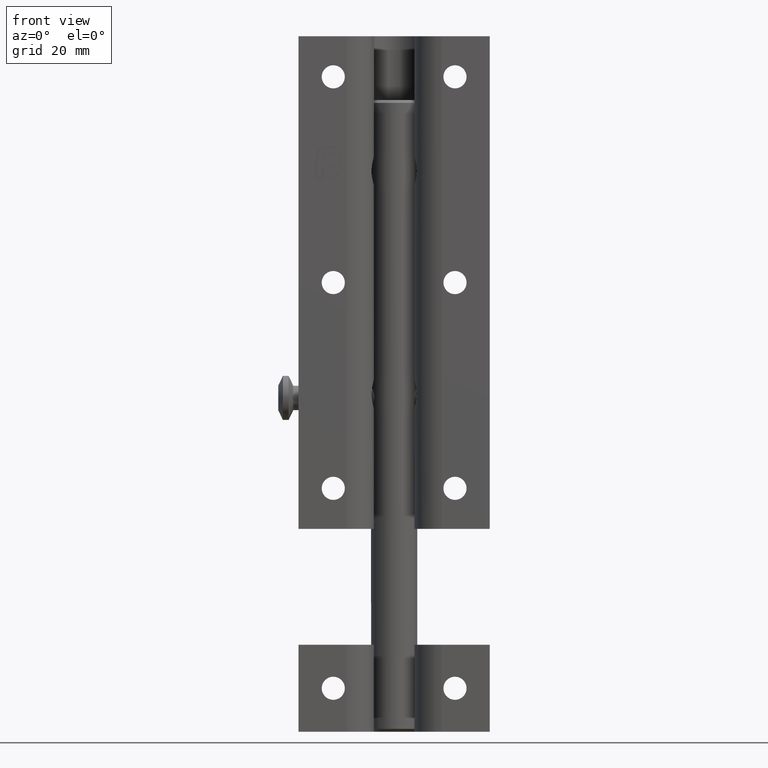
[diagram: clean part render]
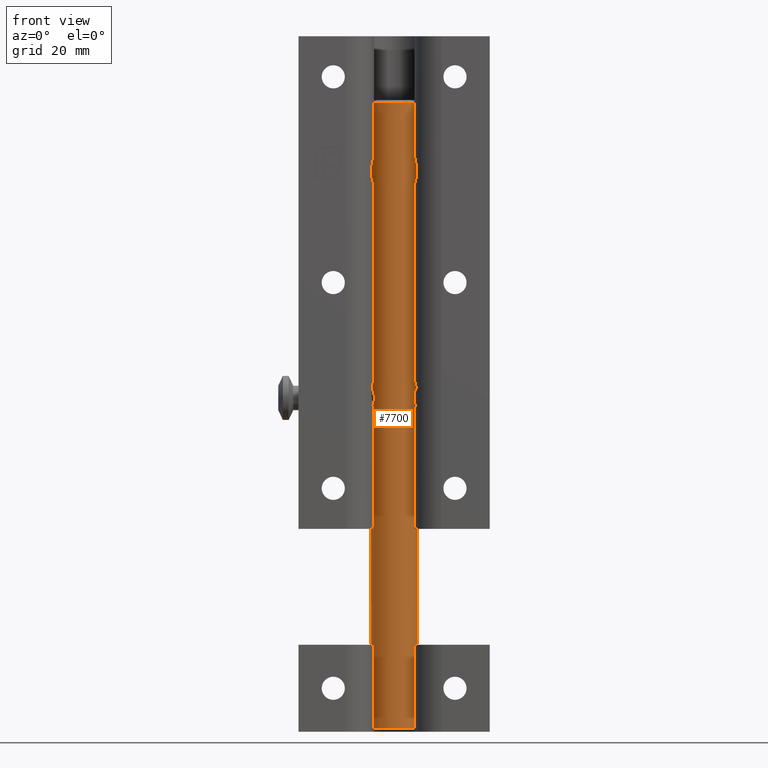
[diagram: same view with one face highlighted and labeled with its STEP entity id]
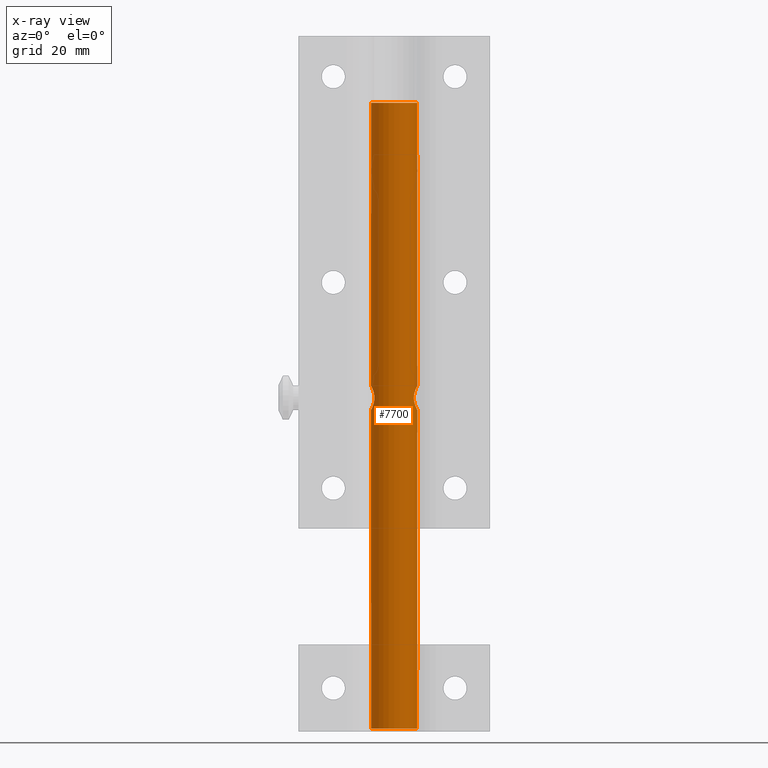
[diagram: x-ray of the same camera — body ghosted, the highlighted face saturated]
A machine part, front view. The second image highlights one B-rep face of the part: STEP entity #7700.
The next image is the same camera in x-ray: the body ghosted, the highlighted face saturated — about 0% of this face is hidden behind the body in this view.
In plain terms, the highlighted cylindrical surface (bore or boss wall) has radius 4 mm, axis along (-0, 0, -1).
Its self-contained STEP definition (entity closure, byte-faithful):
#8 = CARTESIAN_POINT ( 'NONE',  ( 2.086422533839827675, -3.412894280657350787, 2.824183064481748939 ) ) ;
#58 = CARTESIAN_POINT ( 'NONE',  ( 1.885266860487810670, -3.528375267482096955, 2.164751611925175734 ) ) ;
#76 = CARTESIAN_POINT ( 'NONE',  ( 1.664548525148768832, 3.638186043984863449, 1.812477587119948330 ) ) ;
#137 = EDGE_LOOP ( 'NONE', ( #6076 ) ) ;
#149 = CARTESIAN_POINT ( 'NONE',  ( 1.392603934749197636, 3.751158582826889631, 4.677619798817729269 ) ) ;
#196 = CARTESIAN_POINT ( 'NONE',  ( 1.991579794457839725, 3.469480547576524021, 3.780201263688242719 ) ) ;
#241 = CARTESIAN_POINT ( 'NONE',  ( 0.5577558245692442185, 3.963323639515983210, 5.129411290512132737 ) ) ;
#293 = CARTESIAN_POINT ( 'NONE',  ( -1.392603934749196526, -3.751158582826888743, 4.677619798817727492 ) ) ;
#317 = AXIS2_PLACEMENT_3D ( 'NONE', #10081, #6422, #8891 ) ;
#371 = ORIENTED_EDGE ( 'NONE', *, *, #5237, .T. ) ;
#544 = CARTESIAN_POINT ( 'NONE',  ( 1.288964462862775218, 3.788460121688096205, 4.763436787991081722 ) ) ;
#870 = CARTESIAN_POINT ( 'NONE',  ( -0.5590272613966200677, 3.963139078976296137, 1.070948483623603842 ) ) ;
#1002 = CARTESIAN_POINT ( 'NONE',  ( 1.295879428198890126, -3.789787439729146001, 4.774163802664023848 ) ) ;
#1105 = ORIENTED_EDGE ( 'NONE', *, *, #5608, .T. ) ;
#1147 = CARTESIAN_POINT ( 'NONE',  ( 2.085376398335416770, -3.413538994109583058, 3.383605252991710000 ) ) ;
#1200 = CARTESIAN_POINT ( 'NONE',  ( 0.1466686624820182638, -3.999749793389443031, 1.000476585909386262 ) ) ;
#1219 = CARTESIAN_POINT ( 'NONE',  ( -0.1466686624820190965, 3.999749793389442143, 1.000476585909387373 ) ) ;
#1293 = CARTESIAN_POINT ( 'NONE',  ( 0.9417022067265251595, 3.889707660575720372, 4.982010756184765299 ) ) ;
#1303 = FACE_BOUND ( 'NONE', #5165, .T. ) ;
#1390 = CARTESIAN_POINT ( 'NONE',  ( 2.086622040727063698, 3.412773796302301044, 3.374710675273078664 ) ) ;
#1837 = DIRECTION ( 'NONE',  ( 0.000000000000000000, 0.000000000000000000, -1.000000000000000000 ) ) ;
#2058 = CARTESIAN_POINT ( 'NONE',  ( -0.6926460474983499038, 3.941668543636447364, 1.112817931873347099 ) ) ;
#2108 = CARTESIAN_POINT ( 'NONE',  ( -1.066801894119435934, 3.863793379455140009, 4.929607105935878586 ) ) ;
#2146 = CARTESIAN_POINT ( 'NONE',  ( -0.1326880749632052547, -4.000237990549524447, 0.9995466828249840452 ) ) ;
#2160 = CARTESIAN_POINT ( 'NONE',  ( -2.100381390312468177, 3.404173647846869599, 2.965929151354490756 ) ) ;
#2170 = ORIENTED_EDGE ( 'NONE', *, *, #4263, .T. ) ;
#2196 = CARTESIAN_POINT ( 'NONE',  ( -1.388335502371843333, -3.752740201187608982, 1.518651261073822756 ) ) ;
#2251 = CARTESIAN_POINT ( 'NONE',  ( -2.040582332912664665, -3.442474442597478035, 2.534266541798191330 ) ) ;
#2296 = CARTESIAN_POINT ( 'NONE',  ( 1.299511200931253052, -3.788527161189800374, 1.428637712261526138 ) ) ;
#2346 = CARTESIAN_POINT ( 'NONE',  ( 1.583696112197721551, -3.674550785785180018, 1.714376696657827104 ) ) ;
#2393 = CARTESIAN_POINT ( 'NONE',  ( -1.885375808827449040, -3.528320196239689288, 4.035105286213295450 ) ) ;
#2416 = CARTESIAN_POINT ( 'NONE',  ( 1.816489242583001706, 3.564756136792724295, 2.037548783320550339 ) ) ;
#2694 = CARTESIAN_POINT ( 'NONE',  ( 4.000000000000000000, 0.000000000000000000, 54.00000000000003553 ) ) ;
#2899 = CARTESIAN_POINT ( 'NONE',  ( -2.981555974335137194E-16, 4.000000000000000000, 5.199999999999998401 ) ) ;
#3242 = CARTESIAN_POINT ( 'NONE',  ( 0.6804242810594827162, 3.943875094252119240, 1.108440202451197676 ) ) ;
#3326 = CARTESIAN_POINT ( 'NONE',  ( 3.252606517456513302E-16, -3.999999999999999112, 5.199999999999999289 ) ) ;
#3375 = CARTESIAN_POINT ( 'NONE',  ( -1.578968009356111812, -3.676600945191859093, 1.708957467695725763 ) ) ;
#3427 = CARTESIAN_POINT ( 'NONE',  ( 1.882526578626267932, -3.529835718310129877, 4.040549544016341699 ) ) ;
#3476 = CARTESIAN_POINT ( 'NONE',  ( -0.9367681144281851946, -3.890963050596619066, 1.215390457081732878 ) ) ;
#3527 = CARTESIAN_POINT ( 'NONE',  ( 0.5520806641219732080, -3.964076342588858548, 5.130875332880679984 ) ) ;
#3598 = CARTESIAN_POINT ( 'NONE',  ( -1.885266860487810003, 3.528375267482098732, 2.164751611925175734 ) ) ;
#3677 = CARTESIAN_POINT ( 'NONE',  ( -1.583167133977334773, -3.674794995436991840, 4.486294259742361845 ) ) ;
#4002 = B_SPLINE_CURVE_WITH_KNOTS ( 'NONE', 3,
 ( #3326, #14000, #10412, #3527, #10510, #8115, #1002, #5827, #11746, #12916, #3427, #5686, #14047, #1147, #9378, #5876, #8, #7053, #9327, #58, #9226, #6865, #2346, #2296, #8072, #15189, #11555, #8223, #1200, #2146, #10557, #9279, #10358, #3476, #11651, #15104, #2196, #3375, #5735, #11601, #12767, #2251, #4621, #6958, #11699, #11932, #6064, #2393, #10652, #8277, #3677, #293, #11889, #13063, #14151, #14304, #5921, #7104, #7287, #4908 ),
 .UNSPECIFIED., .T., .F.,
 ( 4, 2, 2, 2, 2, 2, 2, 2, 2, 2, 2, 2, 2, 2, 2, 2, 2, 2, 2, 2, 2, 2, 2, 2, 2, 2, 2, 2, 2, 4 ),
 ( 0.000000000000000000, 0.0004179015732330093277, 0.0008358031464660186554, 0.001671606292932037961, 0.002089507866165047668, 0.002507409439398057376, 0.002925311012631066649, 0.003343212585864075923, 0.003761114159097085196, 0.004179015732330094469, 0.004596917305563104177, 0.005014818878796113016, 0.005850622025262132431, 0.006268523598495143005, 0.006686425171728151845, 0.007104326744961161552, 0.007522228318194170392, 0.007940129891427180966, 0.008358031464660188939, 0.008775933037893198646, 0.009193834611126208353, 0.01002963775759222777, 0.01044753933082523921, 0.01086544090405824892, 0.01128334247729126036, 0.01170124405052427007, 0.01211914562375728151, 0.01253704719699029295, 0.01295494877022330266, 0.01337285034345631583 ),
 .UNSPECIFIED. ) ;
#4263 = EDGE_CURVE ( 'NONE', #7270, #7270, #8608, .T. ) ;
#4418 = EDGE_LOOP ( 'NONE', ( #371 ) ) ;
#4433 = CARTESIAN_POINT ( 'NONE',  ( 1.388335502371842667, 3.752740201187605429, 1.518651261073820313 ) ) ;
#4483 = CARTESIAN_POINT ( 'NONE',  ( 0.9367681144281855277, 3.890963050596619510, 1.215390457081732434 ) ) ;
#4621 = CARTESIAN_POINT ( 'NONE',  ( -2.099143096252362728, -3.404937481406705935, 2.815028932997326372 ) ) ;
#4648 = FACE_BOUND ( 'NONE', #4418, .T. ) ;
#4737 = CARTESIAN_POINT ( 'NONE',  ( 0.1326880749632048662, 4.000237990549524447, 0.9995466828249838231 ) ) ;
#4788 = CARTESIAN_POINT ( 'NONE',  ( -1.991155183947914686, 3.469721054619560707, 2.418661819587757389 ) ) ;
#4791 = AXIS2_PLACEMENT_3D ( 'NONE', #12637, #6881, #10522 ) ;
#4862 = CARTESIAN_POINT ( 'NONE',  ( 1.885375808827450594, 3.528320196239690176, 4.035105286213293674 ) ) ;
#4908 = CARTESIAN_POINT ( 'NONE',  ( 3.252606517456513302E-16, -3.999999999999999112, 5.199999999999999289 ) ) ;
#4922 = B_SPLINE_CURVE_WITH_KNOTS ( 'NONE', 3,
 ( #12989, #6826, #15066, #12636, #14173, #2108, #10623, #7935, #7988, #7126, #12937, #9083, #5894, #10370, #9136, #2160, #7885, #6718, #4788, #3598, #14121, #5597, #15016, #12685, #14969, #2058, #870, #11768, #1219, #4737, #9448, #10276, #3242, #4483, #7074, #11814, #4433, #6774, #76, #2416, #13816, #10794, #4956, #11887, #1390, #7152, #196, #4862, #14351, #7195, #8325, #149, #544, #5256, #1293, #13061, #241, #6062, #14612, #2899 ),
 .UNSPECIFIED., .T., .F.,
 ( 4, 2, 2, 2, 2, 2, 2, 2, 2, 2, 2, 2, 2, 2, 2, 2, 2, 2, 2, 2, 2, 2, 2, 2, 2, 2, 2, 2, 2, 4 ),
 ( 0.000000000000000000, 0.0004179015732330111708, 0.0008358031464660223417, 0.001671606292932044900, 0.002089507866165056776, 0.002507409439398068651, 0.002925311012631078792, 0.003343212585864089367, 0.003761114159097099941, 0.004179015732330110082, 0.004596917305563120656, 0.005014818878796129496, 0.005850622025262149778, 0.006268523598495160352, 0.006686425171728170927, 0.007104326744961180634, 0.007522228318194190341, 0.007940129891427200048, 0.008358031464660211490, 0.008775933037893222932, 0.009193834611126234374, 0.01002963775759225205, 0.01044753933082526176, 0.01086544090405827147, 0.01128334247729127771, 0.01170124405052428568, 0.01211914562375729192, 0.01253704719699029815, 0.01295494877022330613, 0.01337285034345631236 ),
 .UNSPECIFIED. ) ;
#4956 = CARTESIAN_POINT ( 'NONE',  ( 2.099143096252365837, 3.404937481406709043, 2.815028932997329036 ) ) ;
#5165 = EDGE_LOOP ( 'NONE', ( #1105 ) ) ;
#5237 = EDGE_CURVE ( 'NONE', #14281, #14281, #4002, .T. ) ;
#5256 = CARTESIAN_POINT ( 'NONE',  ( 1.063925664437056717, 3.857709380020257761, 4.915630335370438253 ) ) ;
#5501 = DIRECTION ( 'NONE',  ( 1.000000000000000000, 0.000000000000000000, 0.000000000000000000 ) ) ;
#5597 = CARTESIAN_POINT ( 'NONE',  ( -1.670187001217623202, 3.635587614175028737, 1.819816817780745000 ) ) ;
#5608 = EDGE_CURVE ( 'NONE', #12429, #12429, #4922, .T. ) ;
#5686 = CARTESIAN_POINT ( 'NONE',  ( 1.988221445275665911, -3.471400582191320972, 3.789576136862064626 ) ) ;
#5735 = CARTESIAN_POINT ( 'NONE',  ( -1.664548525148766611, -3.638186043984863449, 1.812477587119946554 ) ) ;
#5827 = CARTESIAN_POINT ( 'NONE',  ( 1.580590756409762987, -3.675891856875211694, 4.489159761653390923 ) ) ;
#5876 = CARTESIAN_POINT ( 'NONE',  ( 2.100381390312467733, -3.404173647846869599, 2.965929151354491644 ) ) ;
#5894 = CARTESIAN_POINT ( 'NONE',  ( -2.029982145838671759, 3.446768874557340823, 3.655336969627540178 ) ) ;
#5921 = CARTESIAN_POINT ( 'NONE',  ( -0.5577558245692423311, -3.963323639515984098, 5.129411290512136290 ) ) ;
#6062 = CARTESIAN_POINT ( 'NONE',  ( 0.2834167235764782911, 3.992330245882008910, 5.185491957955298048 ) ) ;
#6064 = CARTESIAN_POINT ( 'NONE',  ( -1.991579794457838393, -3.469480547576526241, 3.780201263688243163 ) ) ;
#6076 = ORIENTED_EDGE ( 'NONE', *, *, #13811, .T. ) ;
#6113 = CARTESIAN_POINT ( 'NONE',  ( 4.000000000000000000, 0.000000000000000000, -53.99999999999998579 ) ) ;
#6422 = DIRECTION ( 'NONE',  ( -0.000000000000000000, -0.000000000000000000, 1.000000000000000000 ) ) ;
#6425 = AXIS2_PLACEMENT_3D ( 'NONE', #7671, #1837, #5501 ) ;
#6718 = CARTESIAN_POINT ( 'NONE',  ( -2.032029549848756389, 3.445556888109630567, 2.552195399640762474 ) ) ;
#6731 = VERTEX_POINT ( 'NONE', #6113 ) ;
#6774 = CARTESIAN_POINT ( 'NONE',  ( 1.578968009356112034, 3.676600945191857317, 1.708957467695724430 ) ) ;
#6826 = CARTESIAN_POINT ( 'NONE',  ( -0.1414735490691129693, 4.000000000000000888, 5.199999999999999289 ) ) ;
#6865 = CARTESIAN_POINT ( 'NONE',  ( 1.670187001217623202, -3.635587614175028293, 1.819816817780744556 ) ) ;
#6881 = DIRECTION ( 'NONE',  ( -0.000000000000000000, -0.000000000000000000, -1.000000000000000000 ) ) ;
#6958 = CARTESIAN_POINT ( 'NONE',  ( -2.100413886300440236, -3.404153603165450903, 3.232906238113312458 ) ) ;
#7053 = CARTESIAN_POINT ( 'NONE',  ( 2.032029549848758165, -3.445556888109630123, 2.552195399640761586 ) ) ;
#7074 = CARTESIAN_POINT ( 'NONE',  ( 1.056817010850580330, 3.859668056439868433, 1.280229466628754142 ) ) ;
#7104 = CARTESIAN_POINT ( 'NONE',  ( -0.2834167235764756820, -3.992330245882008910, 5.185491957955296272 ) ) ;
#7126 = CARTESIAN_POINT ( 'NONE',  ( -1.818328162325626218, 3.563809779593960947, 4.159267987503953989 ) ) ;
#7152 = CARTESIAN_POINT ( 'NONE',  ( 2.031955645315903336, 3.445601947562202394, 3.648282547073860904 ) ) ;
#7195 = CARTESIAN_POINT ( 'NONE',  ( 1.669962544205240373, 3.635686233405484913, 4.380436108910181758 ) ) ;
#7270 = VERTEX_POINT ( 'NONE', #2694 ) ;
#7287 = CARTESIAN_POINT ( 'NONE',  ( -0.1414735490691136077, -4.000000000000000000, 5.199999999999999289 ) ) ;
#7671 = CARTESIAN_POINT ( 'NONE',  ( 0.000000000000000000, 0.000000000000000000, 54.00000000000003553 ) ) ;
#7700 = ADVANCED_FACE ( 'NONE', ( #4648, #1303, #10149, #13454 ), #10684, .T. ) ;
#7885 = CARTESIAN_POINT ( 'NONE',  ( -2.086422533839828120, 3.412894280657352564, 2.824183064481749827 ) ) ;
#7935 = CARTESIAN_POINT ( 'NONE',  ( -1.580590756409761877, 3.675891856875211250, 4.489159761653391811 ) ) ;
#7988 = CARTESIAN_POINT ( 'NONE',  ( -1.667095373977112605, 3.637011199474115664, 4.384195853178662894 ) ) ;
#8072 = CARTESIAN_POINT ( 'NONE',  ( 1.069958773093766302, -3.862800285273922274, 1.272490027420788428 ) ) ;
#8115 = CARTESIAN_POINT ( 'NONE',  ( 1.066801894119436600, -3.863793379455139121, 4.929607105935876810 ) ) ;
#8223 = CARTESIAN_POINT ( 'NONE',  ( 0.2850087472127613708, -3.992211523993426603, 1.014734657386218375 ) ) ;
#8277 = CARTESIAN_POINT ( 'NONE',  ( -1.669962544205238819, -3.635686233405485357, 4.380436108910180870 ) ) ;
#8325 = CARTESIAN_POINT ( 'NONE',  ( 1.583167133977336993, 3.674794995436991840, 4.486294259742363622 ) ) ;
#8387 = CARTESIAN_POINT ( 'NONE',  ( 3.796405077356803299E-16, -4.000000000000000000, 5.200000000000000178 ) ) ;
#8608 = CIRCLE ( 'NONE', #6425, 4.000000000000000000 ) ;
#8891 = DIRECTION ( 'NONE',  ( 1.000000000000000000, 0.000000000000000000, 0.000000000000000000 ) ) ;
#9083 = CARTESIAN_POINT ( 'NONE',  ( -1.988221445275664578, 3.471400582191320527, 3.789576136862063738 ) ) ;
#9136 = CARTESIAN_POINT ( 'NONE',  ( -2.099602333496739526, 3.404654204268188877, 3.245763570217337968 ) ) ;
#9226 = CARTESIAN_POINT ( 'NONE',  ( 1.820980307019474997, -3.562450370296608160, 2.045284720637557285 ) ) ;
#9279 = CARTESIAN_POINT ( 'NONE',  ( -0.5477030091619404795, -3.964698642600736456, 1.067912681413746512 ) ) ;
#9327 = CARTESIAN_POINT ( 'NONE',  ( 1.991155183947916019, -3.469721054619560707, 2.418661819587756501 ) ) ;
#9378 = CARTESIAN_POINT ( 'NONE',  ( 2.099602333496740414, -3.404654204268185325, 3.245763570217336191 ) ) ;
#9448 = CARTESIAN_POINT ( 'NONE',  ( 0.2748292176406761933, 3.992904057702384879, 1.013417541112949793 ) ) ;
#9768 = CARTESIAN_POINT ( 'NONE',  ( 0.000000000000000000, 4.000000000000000000, 5.200000000000000178 ) ) ;
#10081 = CARTESIAN_POINT ( 'NONE',  ( 0.000000000000000000, 0.000000000000000000, -53.99999999999998579 ) ) ;
#10149 = FACE_OUTER_BOUND ( 'NONE', #137, .T. ) ;
#10276 = CARTESIAN_POINT ( 'NONE',  ( 0.5477030091619400354, 3.964698642600736456, 1.067912681413746290 ) ) ;
#10358 = CARTESIAN_POINT ( 'NONE',  ( -0.6804242810594839375, -3.943875094252120128, 1.108440202451198786 ) ) ;
#10370 = CARTESIAN_POINT ( 'NONE',  ( -2.085376398335417658, 3.413538994109584390, 3.383605252991711332 ) ) ;
#10412 = CARTESIAN_POINT ( 'NONE',  ( 0.2801099358028062980, -3.992522101809152346, 5.185853806302136881 ) ) ;
#10510 = CARTESIAN_POINT ( 'NONE',  ( 0.6867472584688986137, -3.942729967052016615, 5.089286383061129015 ) ) ;
#10522 = DIRECTION ( 'NONE',  ( -1.000000000000000000, 0.000000000000000000, 0.000000000000000000 ) ) ;
#10557 = CARTESIAN_POINT ( 'NONE',  ( -0.2748292176406763043, -3.992904057702386655, 1.013417541112950238 ) ) ;
#10623 = CARTESIAN_POINT ( 'NONE',  ( -1.295879428198891015, 3.789787439729149110, 4.774163802664025624 ) ) ;
#10652 = CARTESIAN_POINT ( 'NONE',  ( -1.820413079750625052, -3.562735677242341747, 4.155645654148367285 ) ) ;
#10684 = CYLINDRICAL_SURFACE ( 'NONE', #4791, 4.000000000000000000 ) ;
#10794 = CARTESIAN_POINT ( 'NONE',  ( 2.040582332912664665, 3.442474442597477147, 2.534266541798189554 ) ) ;
#11555 = CARTESIAN_POINT ( 'NONE',  ( 0.5590272613966202897, -3.963139078976297913, 1.070948483623603842 ) ) ;
#11601 = CARTESIAN_POINT ( 'NONE',  ( -1.816489242583002151, -3.564756136792727403, 2.037548783320551227 ) ) ;
#11651 = CARTESIAN_POINT ( 'NONE',  ( -1.056817010850579441, -3.859668056439870654, 1.280229466628755031 ) ) ;
#11699 = CARTESIAN_POINT ( 'NONE',  ( -2.086622040727063698, -3.412773796302302820, 3.374710675273078220 ) ) ;
#11746 = CARTESIAN_POINT ( 'NONE',  ( 1.667095373977112827, -3.637011199474115664, 4.384195853178662894 ) ) ;
#11768 = CARTESIAN_POINT ( 'NONE',  ( -0.2850087472127625920, 3.992211523993426603, 1.014734657386219041 ) ) ;
#11814 = CARTESIAN_POINT ( 'NONE',  ( 1.282306564790908876, 3.790724149053793735, 1.431432691665223578 ) ) ;
#11887 = CARTESIAN_POINT ( 'NONE',  ( 2.100413886300442456, 3.404153603165450015, 3.232906238113312902 ) ) ;
#11889 = CARTESIAN_POINT ( 'NONE',  ( -1.288964462862772997, -3.788460121688097093, 4.763436787991080834 ) ) ;
#11932 = CARTESIAN_POINT ( 'NONE',  ( -2.031955645315901560, -3.445601947562201950, 3.648282547073860460 ) ) ;
#11966 = EDGE_LOOP ( 'NONE', ( #2170 ) ) ;
#12429 = VERTEX_POINT ( 'NONE', #9768 ) ;
#12636 = CARTESIAN_POINT ( 'NONE',  ( -0.5520806641219726529, 3.964076342588858548, 5.130875332880679096 ) ) ;
#12637 = CARTESIAN_POINT ( 'NONE',  ( 0.000000000000000000, 0.000000000000000000, 54.50000000000000000 ) ) ;
#12685 = CARTESIAN_POINT ( 'NONE',  ( -1.299511200931252164, 3.788527161189797710, 1.428637712261527026 ) ) ;
#12767 = CARTESIAN_POINT ( 'NONE',  ( -1.881914508840264233, -3.530162803292438589, 2.158243432623069946 ) ) ;
#12916 = CARTESIAN_POINT ( 'NONE',  ( 1.818328162325625552, -3.563809779593960059, 4.159267987503954878 ) ) ;
#12937 = CARTESIAN_POINT ( 'NONE',  ( -1.882526578626267266, 3.529835718310131210, 4.040549544016343475 ) ) ;
#12989 = CARTESIAN_POINT ( 'NONE',  ( -2.981555974335137194E-16, 4.000000000000000000, 5.199999999999998401 ) ) ;
#13061 = CARTESIAN_POINT ( 'NONE',  ( 0.6892135628403220915, 3.942285301153634514, 5.088404435054824759 ) ) ;
#13063 = CARTESIAN_POINT ( 'NONE',  ( -1.063925664437054275, -3.857709380020255985, 4.915630335370437365 ) ) ;
#13454 = FACE_OUTER_BOUND ( 'NONE', #11966, .T. ) ;
#13719 = CIRCLE ( 'NONE', #317, 4.000000000000000000 ) ;
#13811 = EDGE_CURVE ( 'NONE', #6731, #6731, #13719, .T. ) ;
#13816 = CARTESIAN_POINT ( 'NONE',  ( 1.881914508840264677, 3.530162803292439921, 2.158243432623066838 ) ) ;
#14000 = CARTESIAN_POINT ( 'NONE',  ( 0.1414735490691132469, -3.999999999999998224, 5.199999999999999289 ) ) ;
#14047 = CARTESIAN_POINT ( 'NONE',  ( 2.029982145838673979, -3.446768874557340823, 3.655336969627540622 ) ) ;
#14121 = CARTESIAN_POINT ( 'NONE',  ( -1.820980307019474775, 3.562450370296612157, 2.045284720637558173 ) ) ;
#14151 = CARTESIAN_POINT ( 'NONE',  ( -0.9417022067265239382, -3.889707660575721704, 4.982010756184764411 ) ) ;
#14173 = CARTESIAN_POINT ( 'NONE',  ( -0.6867472584688985027, 3.942729967052016615, 5.089286383061126351 ) ) ;
#14281 = VERTEX_POINT ( 'NONE', #8387 ) ;
#14304 = CARTESIAN_POINT ( 'NONE',  ( -0.6892135628403195380, -3.942285301153635402, 5.088404435054827424 ) ) ;
#14351 = CARTESIAN_POINT ( 'NONE',  ( 1.820413079750625052, 3.562735677242343524, 4.155645654148365509 ) ) ;
#14612 = CARTESIAN_POINT ( 'NONE',  ( 0.1414735490691113318, 3.999999999999999112, 5.199999999999998401 ) ) ;
#14969 = CARTESIAN_POINT ( 'NONE',  ( -1.069958773093765858, 3.862800285273920942, 1.272490027420787984 ) ) ;
#15016 = CARTESIAN_POINT ( 'NONE',  ( -1.583696112197719996, 3.674550785785180906, 1.714376696657827104 ) ) ;
#15066 = CARTESIAN_POINT ( 'NONE',  ( -0.2801099358028060204, 3.992522101809154123, 5.185853806302136881 ) ) ;
#15104 = CARTESIAN_POINT ( 'NONE',  ( -1.282306564790909986, -3.790724149053793735, 1.431432691665225354 ) ) ;
#15189 = CARTESIAN_POINT ( 'NONE',  ( 0.6926460474983502369, -3.941668543636449140, 1.112817931873347099 ) ) ;